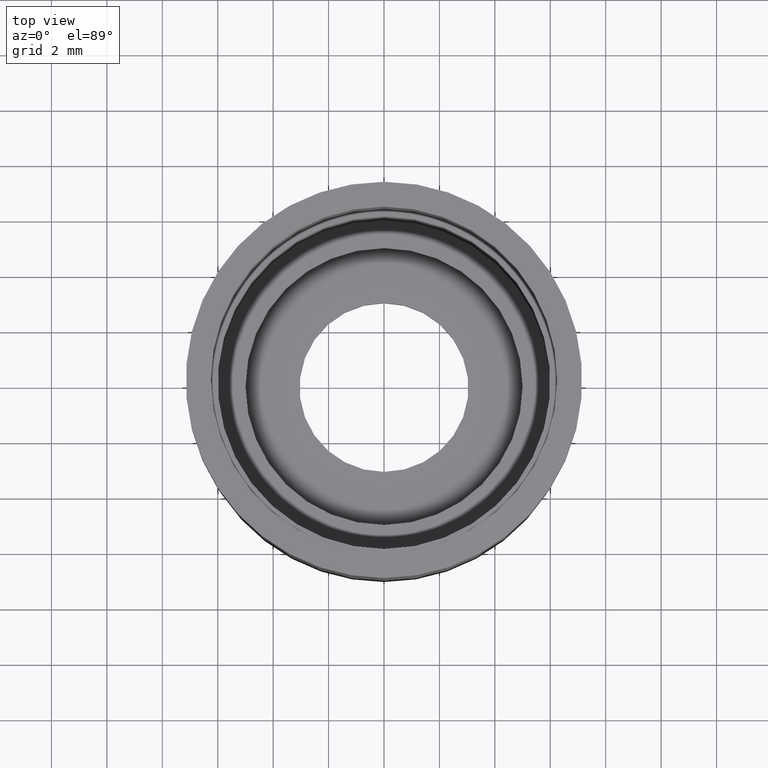
[diagram: clean part render]
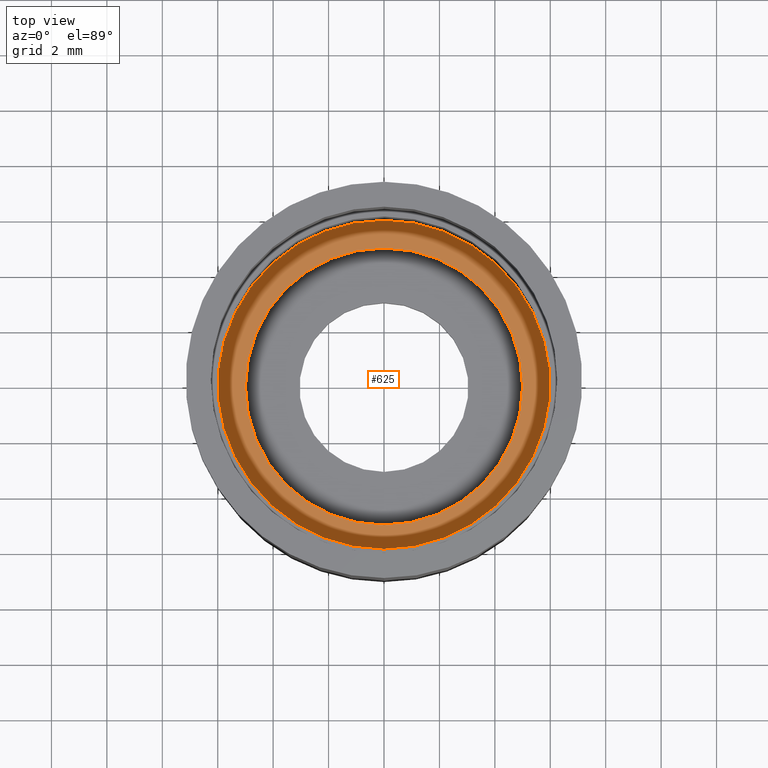
[diagram: same view with one face highlighted and labeled with its STEP entity id]
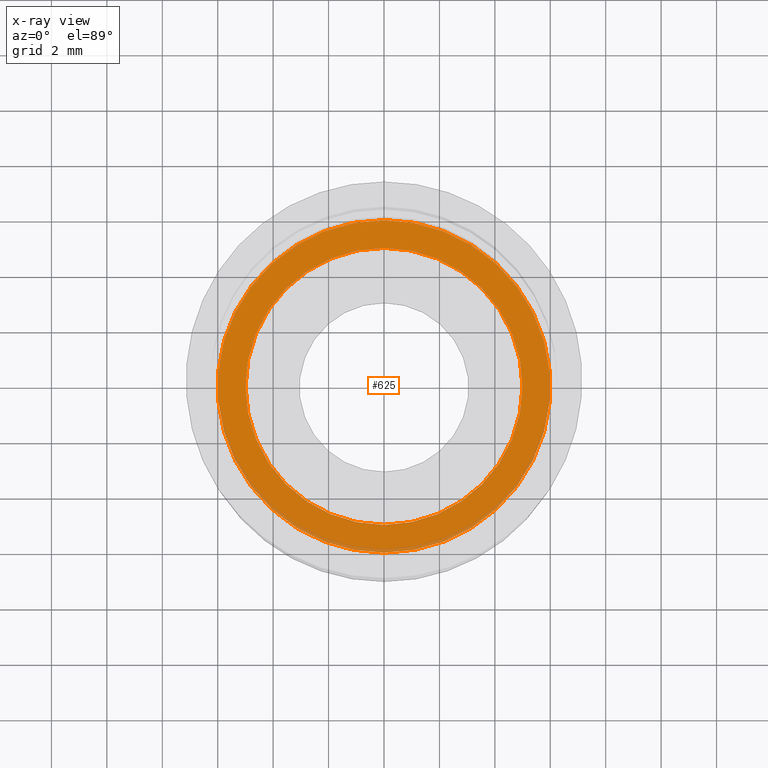
[diagram: x-ray of the same camera — body ghosted, the highlighted face saturated]
A machine part, top view. The second image highlights one B-rep face of the part: STEP entity #625.
The next image is the same camera in x-ray: the body ghosted, the highlighted face saturated — about 5% of this face is hidden behind the body in this view.
In plain terms, the highlighted planar face has unit normal (0, 0, 1).
Its self-contained STEP definition (entity closure, byte-faithful):
#246=CARTESIAN_POINT('',(0.E0,0.E0,-1.37E1));
#247=DIRECTION('',(0.E0,0.E0,-1.E0));
#248=DIRECTION('',(0.E0,-1.E0,0.E0));
#249=AXIS2_PLACEMENT_3D('',#246,#247,#248);
#254=CARTESIAN_POINT('',(0.E0,0.E0,-1.37E1));
#255=DIRECTION('',(0.E0,0.E0,-1.E0));
#256=DIRECTION('',(0.E0,1.E0,0.E0));
#257=AXIS2_PLACEMENT_3D('',#254,#255,#256);
#262=CARTESIAN_POINT('',(0.E0,0.E0,-1.37E1));
#263=DIRECTION('',(0.E0,0.E0,1.E0));
#264=DIRECTION('',(0.E0,-1.E0,0.E0));
#265=AXIS2_PLACEMENT_3D('',#262,#263,#264);
#270=CARTESIAN_POINT('',(0.E0,0.E0,-1.37E1));
#271=DIRECTION('',(0.E0,0.E0,1.E0));
#272=DIRECTION('',(0.E0,1.E0,0.E0));
#273=AXIS2_PLACEMENT_3D('',#270,#271,#272);
#364=CARTESIAN_POINT('',(0.E0,5.E0,-1.37E1));
#365=VERTEX_POINT('',#364);
#366=CARTESIAN_POINT('',(0.E0,-5.E0,-1.37E1));
#367=VERTEX_POINT('',#366);
#368=CARTESIAN_POINT('',(0.E0,-6.E0,-1.37E1));
#369=CARTESIAN_POINT('',(0.E0,6.E0,-1.37E1));
#370=VERTEX_POINT('',#368);
#371=VERTEX_POINT('',#369);
#610=CARTESIAN_POINT('',(0.E0,0.E0,-1.37E1));
#611=DIRECTION('',(0.E0,0.E0,1.E0));
#612=DIRECTION('',(0.E0,1.E0,0.E0));
#613=AXIS2_PLACEMENT_3D('',#610,#611,#612);
#614=PLANE('',#613);
#616=ORIENTED_EDGE('',*,*,#615,.T.);
#618=ORIENTED_EDGE('',*,*,#617,.T.);
#619=EDGE_LOOP('',(#616,#618));
#620=FACE_OUTER_BOUND('',#619,.F.);
#621=ORIENTED_EDGE('',*,*,#603,.T.);
#622=ORIENTED_EDGE('',*,*,#592,.T.);
#623=EDGE_LOOP('',(#621,#622));
#624=FACE_BOUND('',#623,.F.);
#250=CIRCLE('',#249,6.E0);
#258=CIRCLE('',#257,6.E0);
#266=CIRCLE('',#265,5.E0);
#274=CIRCLE('',#273,5.E0);
#592=EDGE_CURVE('',#365,#367,#274,.T.);
#603=EDGE_CURVE('',#367,#365,#266,.T.);
#615=EDGE_CURVE('',#370,#371,#250,.T.);
#617=EDGE_CURVE('',#371,#370,#258,.T.);
#625=ADVANCED_FACE('',(#620,#624),#614,.T.);